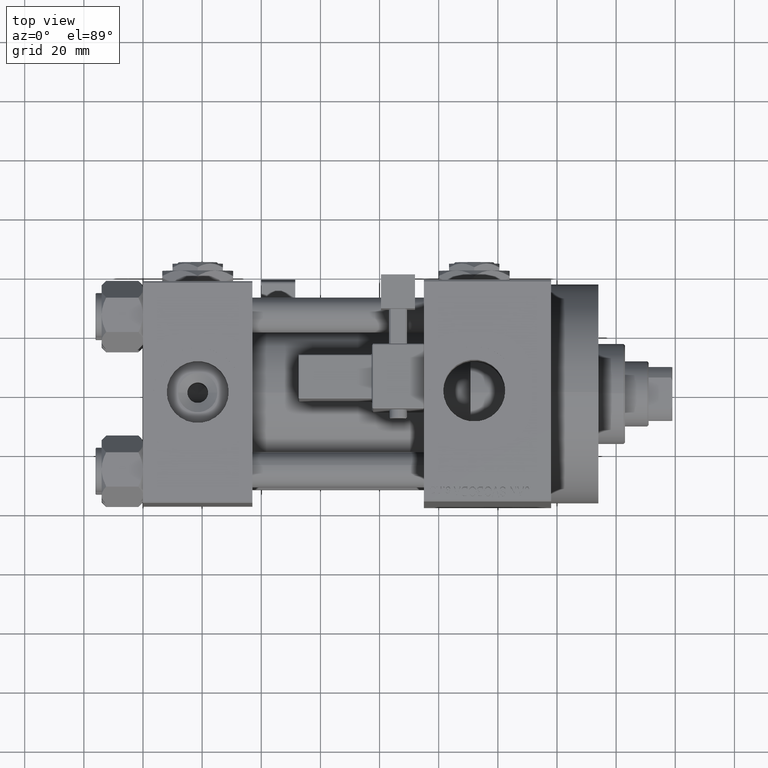
[diagram: clean part render]
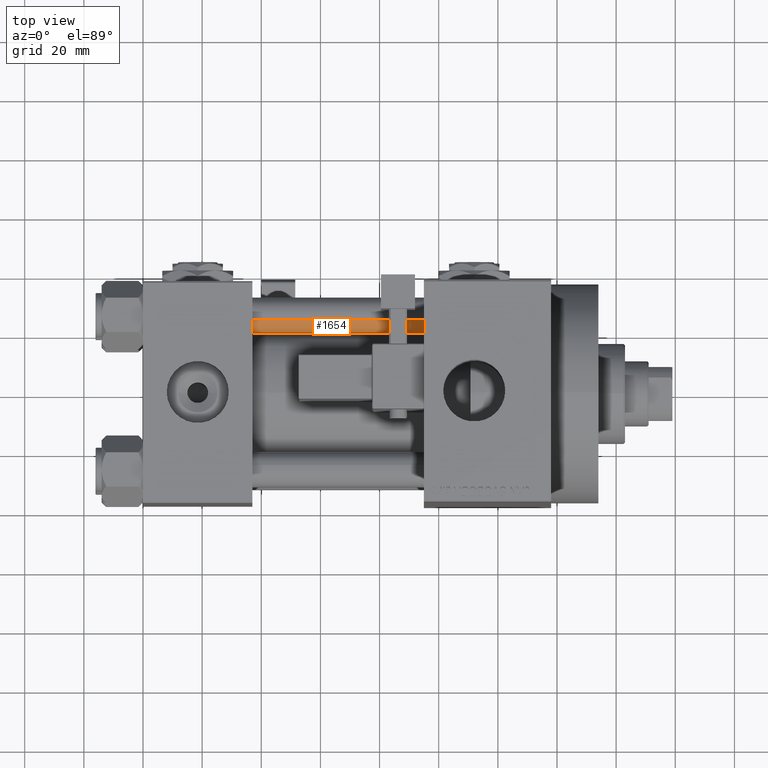
[diagram: same view with one face highlighted and labeled with its STEP entity id]
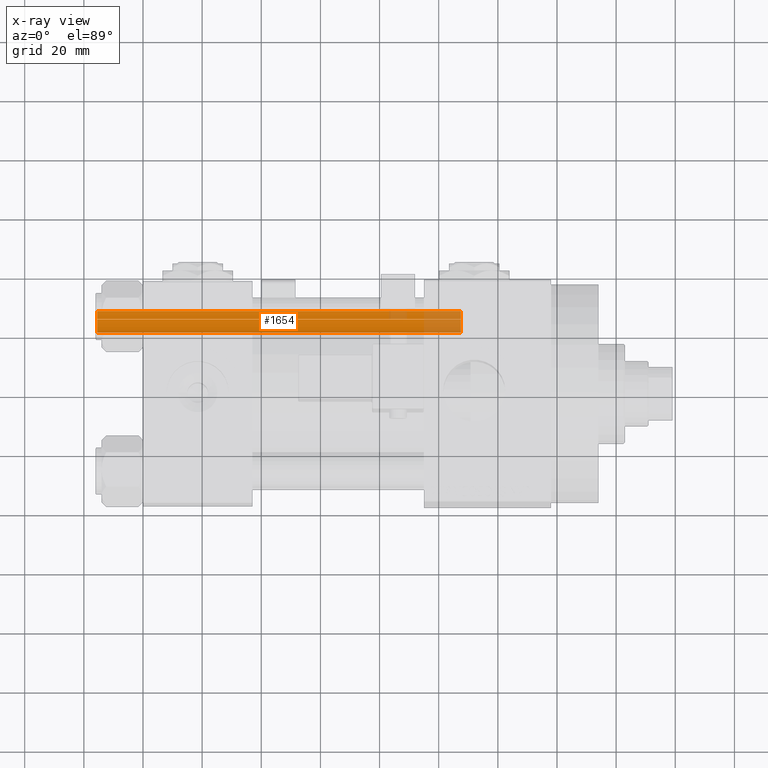
[diagram: x-ray of the same camera — body ghosted, the highlighted face saturated]
A machine part, top view. The second image highlights one B-rep face of the part: STEP entity #1654.
The next image is the same camera in x-ray: the body ghosted, the highlighted face saturated — about 12% of this face is hidden behind the body in this view.
In plain terms, the highlighted cylindrical surface (edge-blend (fillet) strip) has radius 6 mm, axis along (-1, -0, 0).
Its self-contained STEP definition (entity closure, byte-faithful):
#13 = CYLINDRICAL_SURFACE ( 'NONE', #5117, 6.000000000000000888 ) ;
#1654 = ADVANCED_FACE ( 'NONE', ( #15108 ), #13, .T. ) ;
#3177 = CARTESIAN_POINT ( 'NONE',  ( 6.000000000000000888, 7.347880794884120722E-16, 123.5000000000000426 ) ) ;
#5117 = AXIS2_PLACEMENT_3D ( 'NONE', #11475, #15367, #27864 ) ;
#5719 = CARTESIAN_POINT ( 'NONE',  ( 0.000000000000000000, 0.000000000000000000, 123.5000000000000426 ) ) ;
#5878 = DIRECTION ( 'NONE',  ( 1.000000000000000000, 0.000000000000000000, 0.000000000000000000 ) ) ;
#6943 = VERTEX_POINT ( 'NONE', #38610 ) ;
#7106 = CIRCLE ( 'NONE', #41105, 6.000000000000000888 ) ;
#7406 = VECTOR ( 'NONE', #20339, 1000.000000000000000 ) ;
#7928 = ORIENTED_EDGE ( 'NONE', *, *, #41455, .T. ) ;
#9009 = CARTESIAN_POINT ( 'NONE',  ( -6.000000000000000888, 0.000000000000000000, 123.5000000000000426 ) ) ;
#9710 = EDGE_CURVE ( 'NONE', #13875, #42185, #41080, .T. ) ;
#10781 = CARTESIAN_POINT ( 'NONE',  ( -6.000000000000000888, 0.000000000000000000, 0.4999999999999865663 ) ) ;
#11475 = CARTESIAN_POINT ( 'NONE',  ( 0.000000000000000000, 0.000000000000000000, 124.0000000000000000 ) ) ;
#12024 = LINE ( 'NONE', #47695, #7406 ) ;
#13875 = VERTEX_POINT ( 'NONE', #9009 ) ;
#14457 = CARTESIAN_POINT ( 'NONE',  ( 0.000000000000000000, 0.000000000000000000, 0.4999999999999865663 ) ) ;
#15108 = FACE_OUTER_BOUND ( 'NONE', #48136, .T. ) ;
#15367 = DIRECTION ( 'NONE',  ( -0.000000000000000000, -0.000000000000000000, -1.000000000000000000 ) ) ;
#17167 = DIRECTION ( 'NONE',  ( 1.000000000000000000, 0.000000000000000000, 0.000000000000000000 ) ) ;
#17366 = DIRECTION ( 'NONE',  ( -0.000000000000000000, -0.000000000000000000, -1.000000000000000000 ) ) ;
#18196 = CIRCLE ( 'NONE', #34852, 6.000000000000000888 ) ;
#20339 = DIRECTION ( 'NONE',  ( -0.000000000000000000, -0.000000000000000000, -1.000000000000000000 ) ) ;
#20809 = DIRECTION ( 'NONE',  ( 0.000000000000000000, 0.000000000000000000, -1.000000000000000000 ) ) ;
#21617 = ORIENTED_EDGE ( 'NONE', *, *, #21968, .T. ) ;
#21968 = EDGE_CURVE ( 'NONE', #42185, #6943, #18196, .T. ) ;
#22505 = EDGE_CURVE ( 'NONE', #36039, #6943, #12024, .T. ) ;
#25671 = DIRECTION ( 'NONE',  ( -0.000000000000000000, -0.000000000000000000, 1.000000000000000000 ) ) ;
#27864 = DIRECTION ( 'NONE',  ( -1.000000000000000000, 0.000000000000000000, 0.000000000000000000 ) ) ;
#30645 = ORIENTED_EDGE ( 'NONE', *, *, #9710, .T. ) ;
#34852 = AXIS2_PLACEMENT_3D ( 'NONE', #14457, #25671, #5878 ) ;
#36039 = VERTEX_POINT ( 'NONE', #3177 ) ;
#37168 = CARTESIAN_POINT ( 'NONE',  ( -6.000000000000000888, 0.000000000000000000, 124.0000000000000000 ) ) ;
#38610 = CARTESIAN_POINT ( 'NONE',  ( 6.000000000000000888, 7.347880794884120722E-16, 0.4999999999999865663 ) ) ;
#41080 = LINE ( 'NONE', #37168, #49360 ) ;
#41105 = AXIS2_PLACEMENT_3D ( 'NONE', #5719, #20809, #17167 ) ;
#41455 = EDGE_CURVE ( 'NONE', #36039, #13875, #7106, .T. ) ;
#42185 = VERTEX_POINT ( 'NONE', #10781 ) ;
#46065 = ORIENTED_EDGE ( 'NONE', *, *, #22505, .F. ) ;
#47695 = CARTESIAN_POINT ( 'NONE',  ( 6.000000000000000888, 7.347880794884120722E-16, 124.0000000000000000 ) ) ;
#48136 = EDGE_LOOP ( 'NONE', ( #46065, #7928, #30645, #21617 ) ) ;
#49360 = VECTOR ( 'NONE', #17366, 1000.000000000000000 ) ;